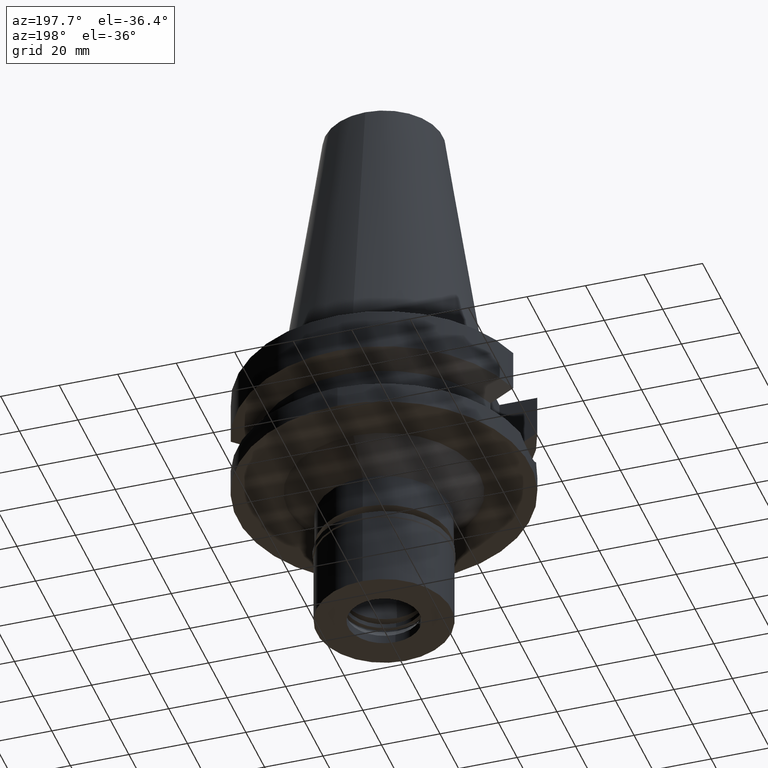
[diagram: clean part render]
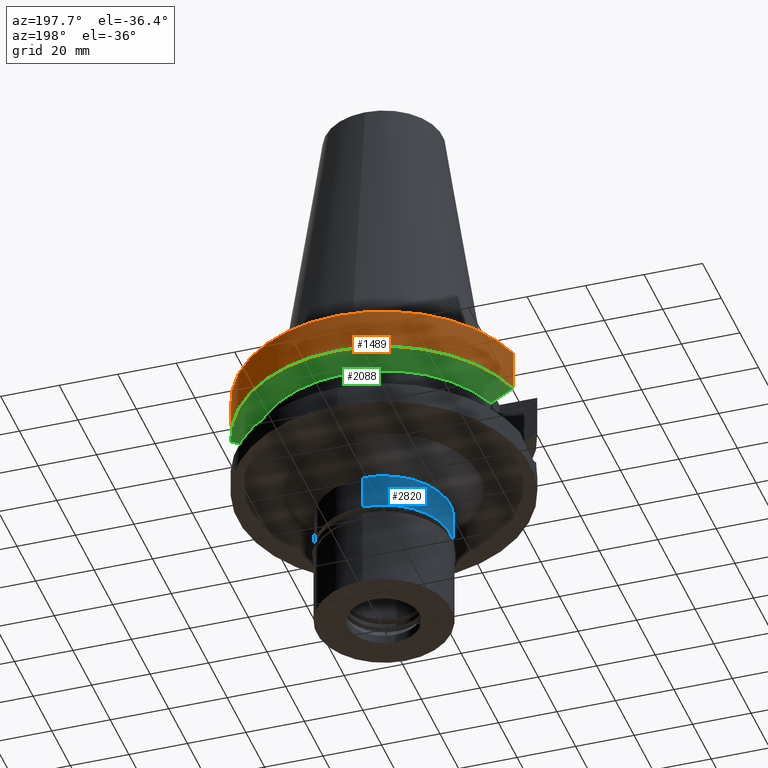
[diagram: same view with three faces highlighted in distinct colors, each labeled with its STEP entity id]
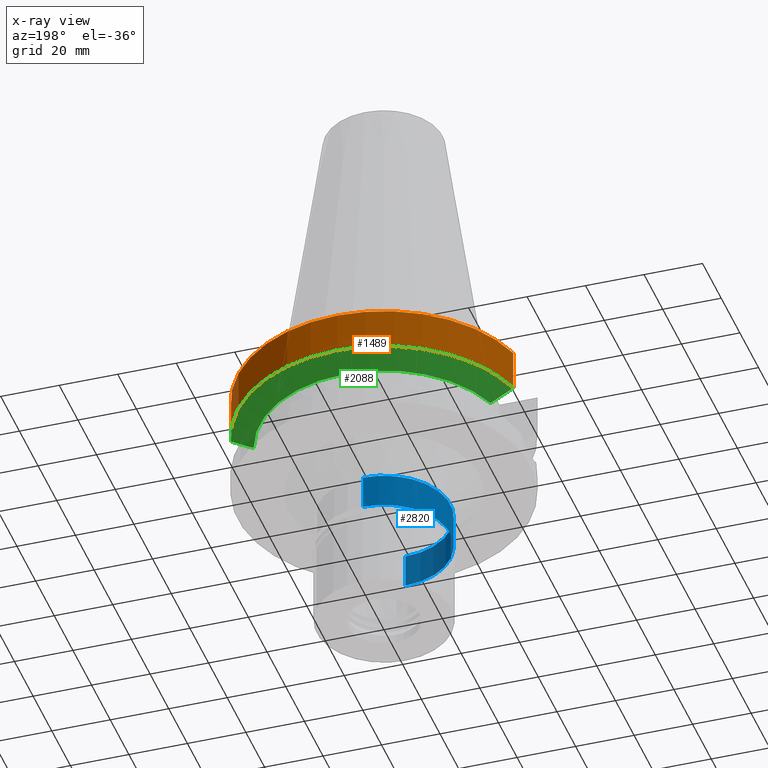
[diagram: x-ray of the same camera — body ghosted, the three highlighted faces saturated]
A machine part, auxiliary view with three faces highlighted in distinct colors.
The next image is the same camera in x-ray (body ghosted, the three faces saturated) — at least one of them is partly hidden behind the body in this view.
Their STEP definitions:

[orange] entity #1489 — the highlighted cylindrical surface (partial cylindrical patch) has radius 50 mm, axis along (0, 0, -1).
#9 = EDGE_CURVE ( 'NONE', #643, #2211, #1576, .T. ) ;
#10 = CARTESIAN_POINT ( 'NONE',  ( 48.32056913505000040, 12.85000383130000046, -15.66265791524999784 ) ) ;
#35 = DIRECTION ( 'NONE',  ( 0.0000000000000000000, 1.000000000000000000, 0.0000000000000000000 ) ) ;
#105 = EDGE_CURVE ( 'NONE', #1741, #2211, #2101, .T. ) ;
#147 = CARTESIAN_POINT ( 'NONE',  ( 48.32056913505000040, 12.85000383130000046, -15.66265791524999784 ) ) ;
#238 = ORIENTED_EDGE ( 'NONE', *, *, #105, .T. ) ;
#268 = EDGE_LOOP ( 'NONE', ( #1321, #1850, #940, #238 ) ) ;
#323 = CARTESIAN_POINT ( 'NONE',  ( -48.32057015392000210, 12.84999999999999964, -1.500000000000000000 ) ) ;
#412 = CYLINDRICAL_SURFACE ( 'NONE', #2701, 50.00000000000000000 ) ;
#475 = DIRECTION ( 'NONE',  ( 0.0000000000000000000, 0.0000000000000000000, -1.000000000000000000 ) ) ;
#520 = DIRECTION ( 'NONE',  ( 0.0000000000000000000, 0.0000000000000000000, -1.000000000000000000 ) ) ;
#593 = DIRECTION ( 'NONE',  ( 0.0000000000000000000, 1.000000000000000000, 0.0000000000000000000 ) ) ;
#620 = CARTESIAN_POINT ( 'NONE',  ( -48.32057015392000210, 12.84999999999999964, -1.500000000000000000 ) ) ;
#643 = VERTEX_POINT ( 'NONE', #620 ) ;
#707 = VECTOR ( 'NONE', #2043, 1000.000000000000114 ) ;
#727 = DIRECTION ( 'NONE',  ( 0.0000000000000000000, -1.000000000000000000, 0.0000000000000000000 ) ) ;
#749 = EDGE_CURVE ( 'NONE', #1741, #778, #1136, .T. ) ;
#765 = AXIS2_PLACEMENT_3D ( 'NONE', #2968, #828, #593 ) ;
#778 = VERTEX_POINT ( 'NONE', #874 ) ;
#828 = DIRECTION ( 'NONE',  ( 0.0000000000000000000, 0.0000000000000000000, 1.000000000000000000 ) ) ;
#874 = CARTESIAN_POINT ( 'NONE',  ( 48.32057015392000210, 12.84999999999999964, -1.500000000000000000 ) ) ;
#917 = EDGE_CURVE ( 'NONE', #643, #778, #2067, .T. ) ;
#940 = ORIENTED_EDGE ( 'NONE', *, *, #749, .F. ) ;
#1136 = LINE ( 'NONE', #147, #2972 ) ;
#1321 = ORIENTED_EDGE ( 'NONE', *, *, #9, .F. ) ;
#1335 = DIRECTION ( 'NONE',  ( 7.194045954223718562E-08, -2.705215394884894467E-07, 0.9999999999999609201 ) ) ;
#1489 = ADVANCED_FACE ( 'NONE', ( #3026 ), #412, .T. ) ;
#1576 = LINE ( 'NONE', #323, #707 ) ;
#1741 = VERTEX_POINT ( 'NONE', #10 ) ;
#1850 = ORIENTED_EDGE ( 'NONE', *, *, #917, .T. ) ;
#2043 = DIRECTION ( 'NONE',  ( 7.183936593455717882E-08, 2.701413925348894239E-07, -0.9999999999999609201 ) ) ;
#2067 = CIRCLE ( 'NONE', #2663, 50.00000000000000000 ) ;
#2101 = CIRCLE ( 'NONE', #765, 50.00000000000000000 ) ;
#2211 = VERTEX_POINT ( 'NONE', #2566 ) ;
#2566 = CARTESIAN_POINT ( 'NONE',  ( -48.32056913648000318, 12.85000382592000179, -15.66265796349000006 ) ) ;
#2663 = AXIS2_PLACEMENT_3D ( 'NONE', #2949, #520, #35 ) ;
#2701 = AXIS2_PLACEMENT_3D ( 'NONE', #2909, #475, #727 ) ;
#2909 = CARTESIAN_POINT ( 'NONE',  ( 0.0000000000000000000, 2.582045311321999724E-14, 110.8399999999999892 ) ) ;
#2949 = CARTESIAN_POINT ( 'NONE',  ( 0.0000000000000000000, 2.582045311321999724E-14, -1.500000000000000000 ) ) ;
#2968 = CARTESIAN_POINT ( 'NONE',  ( 0.0000000000000000000, 1.006319759053999930E-14, -15.66269223573000069 ) ) ;
#2972 = VECTOR ( 'NONE', #1335, 999.9999999999998863 ) ;
#3026 = FACE_OUTER_BOUND ( 'NONE', #268, .T. ) ;

[blue] entity #2820 — the highlighted cylindrical surface (partial cylindrical patch) has radius 22.75 mm, axis along (0, 0, -1).
#55 = CARTESIAN_POINT ( 'NONE',  ( 0.0000000000000000000, 22.75000000000000000, -59.79999999999999716 ) ) ;
#92 = CYLINDRICAL_SURFACE ( 'NONE', #1906, 22.75000000000000000 ) ;
#115 = CARTESIAN_POINT ( 'NONE',  ( 0.0000000000000000000, -22.75000000000000000, -59.79999999999999716 ) ) ;
#140 = VERTEX_POINT ( 'NONE', #2601 ) ;
#185 = ORIENTED_EDGE ( 'NONE', *, *, #2629, .T. ) ;
#224 = DIRECTION ( 'NONE',  ( 0.0000000000000000000, 0.0000000000000000000, -1.000000000000000000 ) ) ;
#311 = VERTEX_POINT ( 'NONE', #115 ) ;
#336 = DIRECTION ( 'NONE',  ( 0.0000000000000000000, 0.0000000000000000000, 1.000000000000000000 ) ) ;
#406 = LINE ( 'NONE', #2068, #2109 ) ;
#519 = VECTOR ( 'NONE', #839, 1000.000000000000000 ) ;
#562 = EDGE_CURVE ( 'NONE', #2471, #311, #406, .T. ) ;
#589 = CARTESIAN_POINT ( 'NONE',  ( 0.0000000000000000000, 22.75000000000000000, -48.00000000000000000 ) ) ;
#698 = EDGE_CURVE ( 'NONE', #140, #1531, #1588, .T. ) ;
#738 = CARTESIAN_POINT ( 'NONE',  ( 0.0000000000000000000, 2.582045311321999724E-14, -59.79999999999999716 ) ) ;
#809 = DIRECTION ( 'NONE',  ( 0.0000000000000000000, 1.000000000000000000, 0.0000000000000000000 ) ) ;
#839 = DIRECTION ( 'NONE',  ( 0.0000000000000000000, 0.0000000000000000000, -1.000000000000000000 ) ) ;
#881 = EDGE_CURVE ( 'NONE', #1531, #311, #2617, .T. ) ;
#1142 = DIRECTION ( 'NONE',  ( 0.0000000000000000000, 0.0000000000000000000, -1.000000000000000000 ) ) ;
#1175 = CARTESIAN_POINT ( 'NONE',  ( 0.0000000000000000000, 0.0000000000000000000, -48.00000000000000000 ) ) ;
#1229 = CARTESIAN_POINT ( 'NONE',  ( 0.0000000000000000000, 2.582045311321999724E-14, 110.8399999999999892 ) ) ;
#1294 = CIRCLE ( 'NONE', #3018, 22.75000000000000000 ) ;
#1424 = AXIS2_PLACEMENT_3D ( 'NONE', #738, #336, #809 ) ;
#1493 = DIRECTION ( 'NONE',  ( 0.0000000000000000000, 0.0000000000000000000, -1.000000000000000000 ) ) ;
#1503 = ORIENTED_EDGE ( 'NONE', *, *, #881, .T. ) ;
#1531 = VERTEX_POINT ( 'NONE', #55 ) ;
#1588 = LINE ( 'NONE', #589, #519 ) ;
#1634 = DIRECTION ( 'NONE',  ( 0.0000000000000000000, -1.000000000000000000, 0.0000000000000000000 ) ) ;
#1906 = AXIS2_PLACEMENT_3D ( 'NONE', #1229, #1493, #2191 ) ;
#1949 = CARTESIAN_POINT ( 'NONE',  ( 0.0000000000000000000, -22.75000000000000000, -48.00000000000000000 ) ) ;
#1973 = EDGE_LOOP ( 'NONE', ( #1503, #3008, #185, #2402 ) ) ;
#2068 = CARTESIAN_POINT ( 'NONE',  ( 0.0000000000000000000, -22.75000000000000000, -48.00000000000000000 ) ) ;
#2109 = VECTOR ( 'NONE', #1142, 1000.000000000000000 ) ;
#2191 = DIRECTION ( 'NONE',  ( 0.0000000000000000000, -1.000000000000000000, 0.0000000000000000000 ) ) ;
#2226 = FACE_OUTER_BOUND ( 'NONE', #1973, .T. ) ;
#2402 = ORIENTED_EDGE ( 'NONE', *, *, #698, .T. ) ;
#2471 = VERTEX_POINT ( 'NONE', #1949 ) ;
#2601 = CARTESIAN_POINT ( 'NONE',  ( 0.0000000000000000000, 22.75000000000000000, -48.00000000000000000 ) ) ;
#2617 = CIRCLE ( 'NONE', #1424, 22.75000000000000000 ) ;
#2629 = EDGE_CURVE ( 'NONE', #2471, #140, #1294, .T. ) ;
#2820 = ADVANCED_FACE ( 'NONE', ( #2226 ), #92, .T. ) ;
#3008 = ORIENTED_EDGE ( 'NONE', *, *, #562, .F. ) ;
#3018 = AXIS2_PLACEMENT_3D ( 'NONE', #1175, #224, #1634 ) ;

[green] entity #2088 — the highlighted conical surface has half-angle 60 deg.
#10 = CARTESIAN_POINT ( 'NONE',  ( 48.32056913505000040, 12.85000383130000046, -15.66265791524999784 ) ) ;
#54 = B_SPLINE_CURVE_WITH_KNOTS ( 'NONE', 3,
 ( #2496, #163, #1554, #1765 ),
 .UNSPECIFIED., .F., .F.,
 ( 4, 4 ),
 ( 0.0000000000000000000, 1.000000000000000000 ),
 .UNSPECIFIED. ) ;
#105 = EDGE_CURVE ( 'NONE', #1741, #2211, #2101, .T. ) ;
#122 = CONICAL_SURFACE ( 'NONE', #1853, 46.25000000000000000, 1.047197551196400456 ) ;
#163 = CARTESIAN_POINT ( 'NONE',  ( -42.90863112114644906, 12.84999291455494586, -18.67324438248772367 ) ) ;
#285 = VERTEX_POINT ( 'NONE', #2255 ) ;
#337 = ORIENTED_EDGE ( 'NONE', *, *, #2940, .T. ) ;
#564 = DIRECTION ( 'NONE',  ( -0.9531960443486575674, 0.3023529411764863672, 0.0000000000000000000 ) ) ;
#587 = CARTESIAN_POINT ( 'NONE',  ( 0.0000000000000000000, 1.006319759053999930E-14, -17.82775574519000017 ) ) ;
#593 = DIRECTION ( 'NONE',  ( 0.0000000000000000000, 1.000000000000000000, 0.0000000000000000000 ) ) ;
#616 = FACE_OUTER_BOUND ( 'NONE', #1010, .T. ) ;
#701 = AXIS2_PLACEMENT_3D ( 'NONE', #786, #2705, #564 ) ;
#765 = AXIS2_PLACEMENT_3D ( 'NONE', #2968, #828, #593 ) ;
#774 = CARTESIAN_POINT ( 'NONE',  ( 40.51083300354000727, 12.84999647313000004, -19.99284632095000092 ) ) ;
#786 = CARTESIAN_POINT ( 'NONE',  ( 0.0000000000000000000, 1.006319759053999930E-14, -19.99281925464999787 ) ) ;
#796 = CARTESIAN_POINT ( 'NONE',  ( 48.32056913505000040, 12.85000383130000046, -15.66265791524999784 ) ) ;
#823 = ORIENTED_EDGE ( 'NONE', *, *, #1633, .F. ) ;
#828 = DIRECTION ( 'NONE',  ( 0.0000000000000000000, 0.0000000000000000000, 1.000000000000000000 ) ) ;
#862 = ORIENTED_EDGE ( 'NONE', *, *, #1910, .T. ) ;
#986 = VERTEX_POINT ( 'NONE', #1236 ) ;
#1010 = EDGE_LOOP ( 'NONE', ( #2428, #337, #823, #862 ) ) ;
#1236 = CARTESIAN_POINT ( 'NONE',  ( -40.51083188481999997, 12.84999999999999964, -19.99281925464999787 ) ) ;
#1365 = DIRECTION ( 'NONE',  ( 0.0000000000000000000, 0.0000000000000000000, 1.000000000000000000 ) ) ;
#1516 = CARTESIAN_POINT ( 'NONE',  ( 45.51179777016947270, 12.85000765798329248, -17.22986776147535792 ) ) ;
#1554 = CARTESIAN_POINT ( 'NONE',  ( -45.51180176065876282, 12.85000764722576783, -17.22986553659302800 ) ) ;
#1633 = EDGE_CURVE ( 'NONE', #986, #285, #2757, .T. ) ;
#1741 = VERTEX_POINT ( 'NONE', #10 ) ;
#1765 = CARTESIAN_POINT ( 'NONE',  ( -48.32056913648000318, 12.85000382592000179, -15.66265796349000006 ) ) ;
#1853 = AXIS2_PLACEMENT_3D ( 'NONE', #587, #1365, #2008 ) ;
#1910 = EDGE_CURVE ( 'NONE', #986, #2211, #54, .T. ) ;
#2008 = DIRECTION ( 'NONE',  ( 0.0000000000000000000, 1.000000000000000000, 0.0000000000000000000 ) ) ;
#2088 = ADVANCED_FACE ( 'NONE', ( #616 ), #122, .T. ) ;
#2101 = CIRCLE ( 'NONE', #765, 50.00000000000000000 ) ;
#2211 = VERTEX_POINT ( 'NONE', #2566 ) ;
#2255 = CARTESIAN_POINT ( 'NONE',  ( 40.51083300354000727, 12.84999647313000004, -19.99284632095000092 ) ) ;
#2424 = B_SPLINE_CURVE_WITH_KNOTS ( 'NONE', 3,
 ( #796, #1516, #2468, #774 ),
 .UNSPECIFIED., .F., .F.,
 ( 4, 4 ),
 ( 0.0000000000000000000, 1.000000000000000000 ),
 .UNSPECIFIED. ) ;
#2428 = ORIENTED_EDGE ( 'NONE', *, *, #105, .F. ) ;
#2468 = CARTESIAN_POINT ( 'NONE',  ( 42.90862359821735339, 12.84999293908198403, -18.67324855001384520 ) ) ;
#2496 = CARTESIAN_POINT ( 'NONE',  ( -40.51083188481999997, 12.84999999999999964, -19.99281925464999787 ) ) ;
#2566 = CARTESIAN_POINT ( 'NONE',  ( -48.32056913648000318, 12.85000382592000179, -15.66265796349000006 ) ) ;
#2705 = DIRECTION ( 'NONE',  ( 0.0000000000000000000, 0.0000000000000000000, -1.000000000000000000 ) ) ;
#2757 = CIRCLE ( 'NONE', #701, 42.50000000000002132 ) ;
#2940 = EDGE_CURVE ( 'NONE', #1741, #285, #2424, .T. ) ;
#2968 = CARTESIAN_POINT ( 'NONE',  ( 0.0000000000000000000, 1.006319759053999930E-14, -15.66269223573000069 ) ) ;